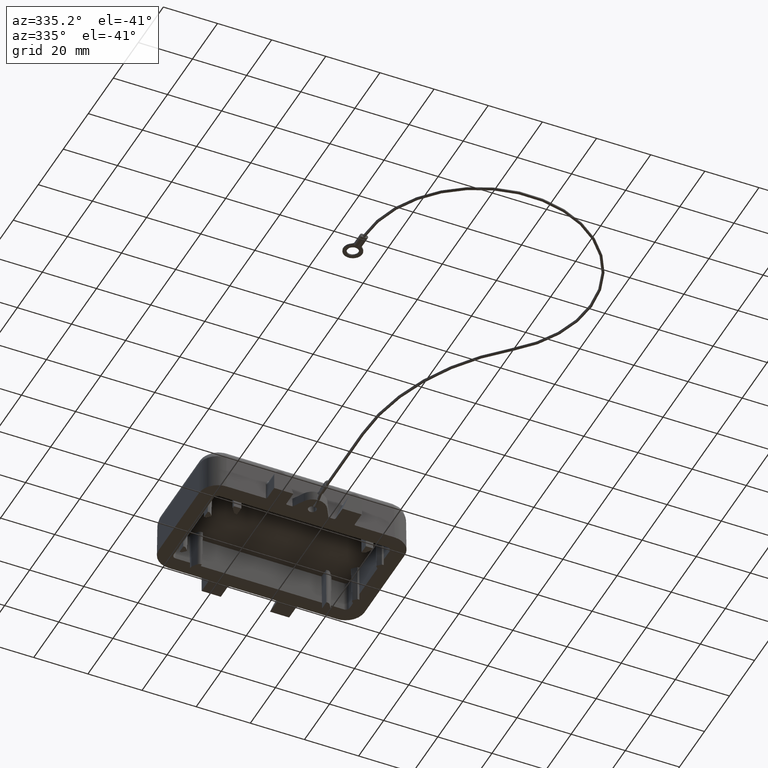
[diagram: clean part render]
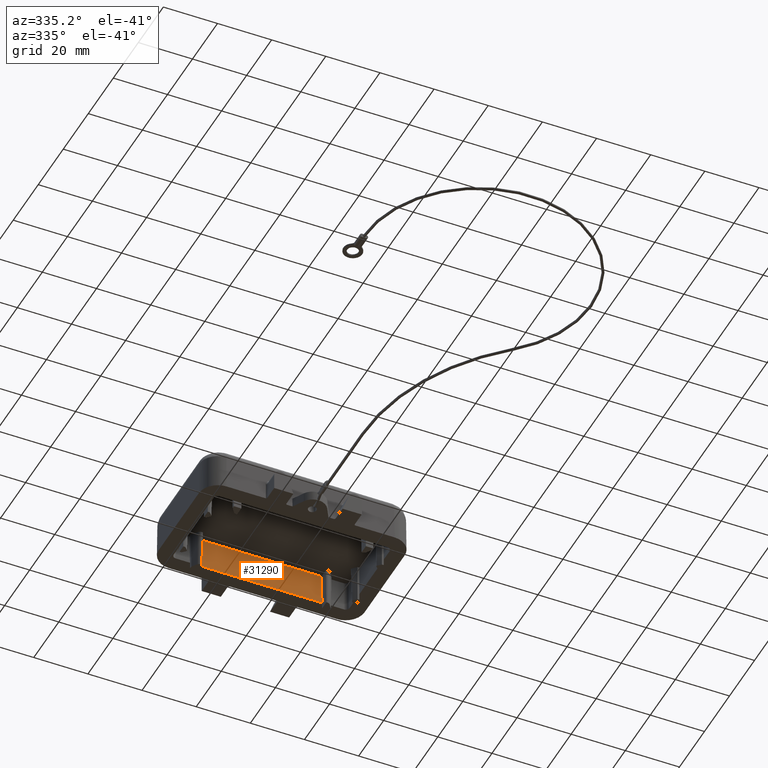
[diagram: same view with one face highlighted and labeled with its STEP entity id]
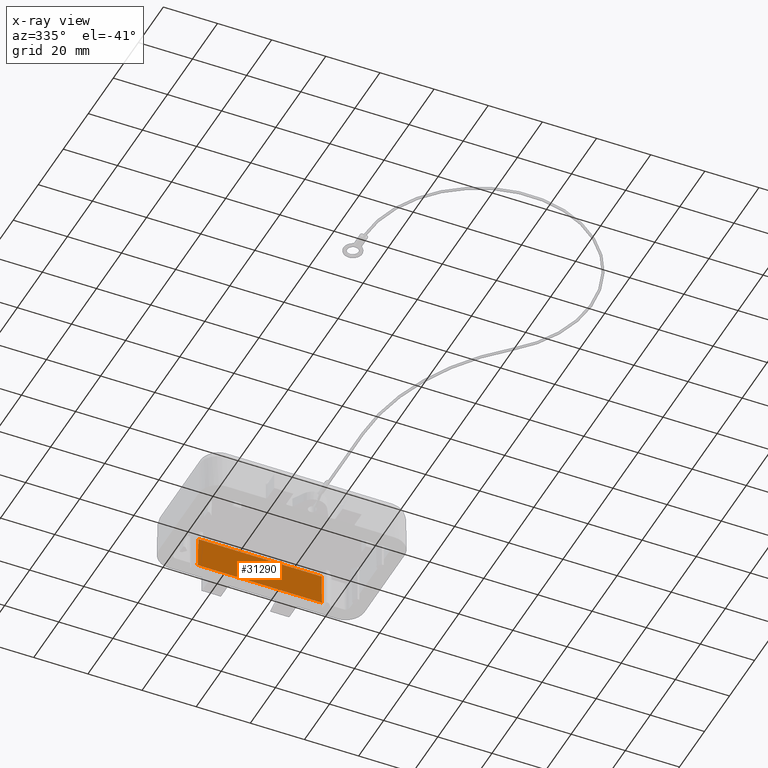
[diagram: x-ray of the same camera — body ghosted, the highlighted face saturated]
A machine part, auxiliary view. The second image highlights one B-rep face of the part: STEP entity #31290.
The next image is the same camera in x-ray: the body ghosted, the highlighted face saturated — about 0% of this face is hidden behind the body in this view.
In plain terms, the highlighted planar face has unit normal (0, -1, -0.0087).
Its self-contained STEP definition (entity closure, byte-faithful):
#520=CARTESIAN_POINT('',(4.55124934083372,9.53378094464931,-12.));
#530=VERTEX_POINT('',#520);
#1080=CARTESIAN_POINT('',(4.45053381423935,9.33233454966142,
-0.459143760488844));
#1090=VERTEX_POINT('',#1080);
#1120=CARTESIAN_POINT('',(4.44652692734461,9.3243201655107,0.));
#1130=DIRECTION('',(0.00872520650594019,0.0174517421055201,
-0.999809635615156));
#1140=VECTOR('',#1130,1.);
#1150=LINE('',#1120,#1140);
#1160=EDGE_CURVE('',#1090,#530,#1150,.T.);
#3220=CARTESIAN_POINT('',(4.55124934083372,0.,-12.));
#3230=DIRECTION('',(0.,1.,0.));
#3240=VECTOR('',#3230,1.);
#3250=LINE('',#3220,#3240);
#3260=CARTESIAN_POINT('',(4.55124934083372,55.0450391266592,-12.));
#3270=VERTEX_POINT('',#3260);
#3280=EDGE_CURVE('',#530,#3270,#3250,.T.);
#31060=CARTESIAN_POINT('',(4.44652692734461,0.,0.));
#31070=DIRECTION('',(0.999961923064171,0.,0.00872653549837393));
#31080=DIRECTION('',(0.,-1.,0.));
#31090=AXIS2_PLACEMENT_3D('',#31060,#31070,#31080);
#31100=PLANE('',#31090);
#31110=ORIENTED_EDGE('',*,*,#3280,.T.);
#31120=ORIENTED_EDGE('',*,*,#1160,.T.);
#31130=CARTESIAN_POINT('',(4.45053381423935,0.,-0.459143760488843));
#31140=DIRECTION('',(8.69020840178518E-19,1.,-9.9579925010296E-17));
#31150=VECTOR('',#31140,1.);
#31160=LINE('',#31130,#31150);
#31170=CARTESIAN_POINT('',(4.45053381423935,55.2464855216471,
-0.459143760488848));
#31180=VERTEX_POINT('',#31170);
#31190=EDGE_CURVE('',#1090,#31180,#31160,.T.);
#31200=ORIENTED_EDGE('',*,*,#31190,.F.);
#31210=CARTESIAN_POINT('',(4.44652692734461,55.2544999057978,0.));
#31220=DIRECTION('',(0.00872520650594019,-0.0174517421055201,
-0.999809635615156));
#31230=VECTOR('',#31220,1.);
#31240=LINE('',#31210,#31230);
#31250=EDGE_CURVE('',#31180,#3270,#31240,.T.);
#31260=ORIENTED_EDGE('',*,*,#31250,.F.);
#31270=EDGE_LOOP('',(#31260,#31200,#31120,#31110));
#31280=FACE_OUTER_BOUND('',#31270,.T.);
#31290=ADVANCED_FACE('',(#31280),#31100,.T.);